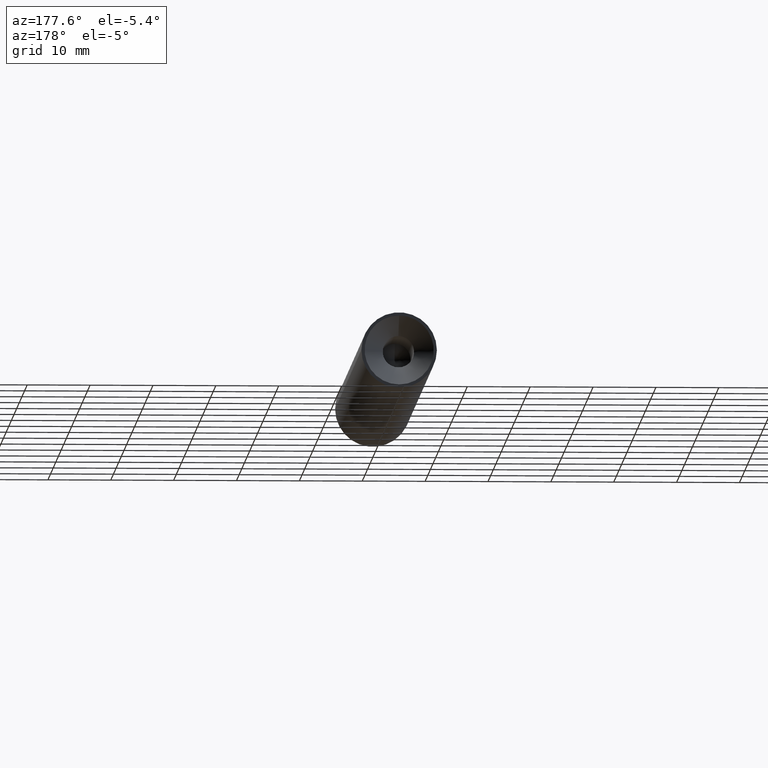
[diagram: clean part render]
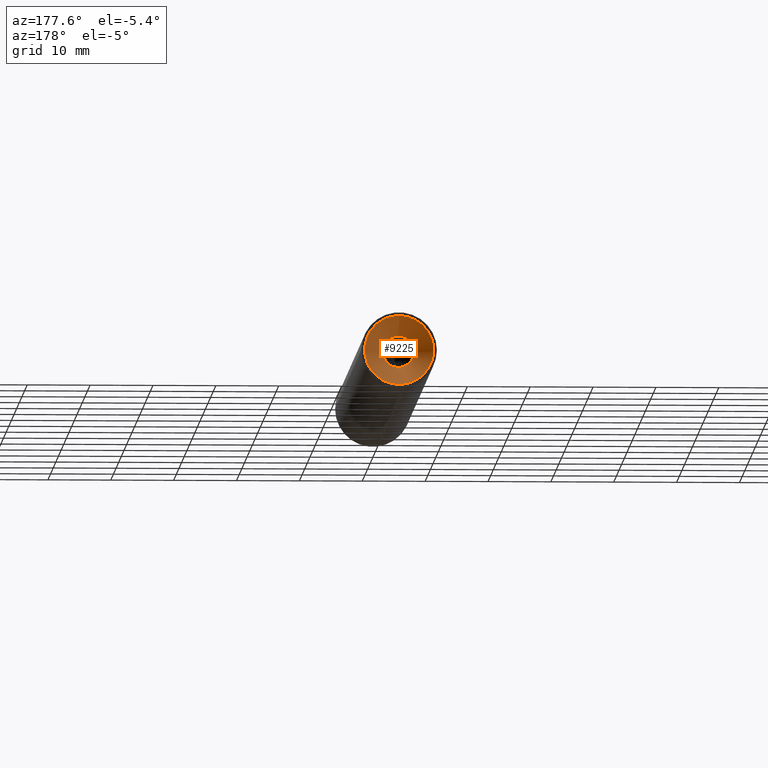
[diagram: same view with one face highlighted and labeled with its STEP entity id]
A machine part, auxiliary view. The second image highlights one B-rep face of the part: STEP entity #9225.
In plain terms, the highlighted conical surface has half-angle 45 deg.
Its self-contained STEP definition (entity closure, byte-faithful):
#452 = AXIS2_PLACEMENT_3D ( 'NONE', #11515, #11653, #5254 ) ;
#1163 = VERTEX_POINT ( 'NONE', #5500 ) ;
#2395 = CIRCLE ( 'NONE', #452, 2.499999999999992895 ) ;
#3405 = ORIENTED_EDGE ( 'NONE', *, *, #4497, .T. ) ;
#4497 = EDGE_CURVE ( 'NONE', #1163, #1163, #8909, .T. ) ;
#5213 = DIRECTION ( 'NONE',  ( -0.000000000000000000, 1.000000000000000000, -0.000000000000000000 ) ) ;
#5254 = DIRECTION ( 'NONE',  ( 0.000000000000000000, 0.000000000000000000, 1.000000000000000000 ) ) ;
#5285 = CONICAL_SURFACE ( 'NONE', #5869, 5.500000000000000000, 0.7853981633974479459 ) ;
#5500 = CARTESIAN_POINT ( 'NONE',  ( -1.674721690771509485E-31, 100.0000000000000000, 5.500000000000000000 ) ) ;
#5553 = EDGE_LOOP ( 'NONE', ( #12661 ) ) ;
#5869 = AXIS2_PLACEMENT_3D ( 'NONE', #11611, #5213, #6237 ) ;
#6237 = DIRECTION ( 'NONE',  ( 0.000000000000000000, 0.000000000000000000, 1.000000000000000000 ) ) ;
#6530 = AXIS2_PLACEMENT_3D ( 'NONE', #11392, #9121, #9312 ) ;
#7073 = VERTEX_POINT ( 'NONE', #10976 ) ;
#8726 = FACE_OUTER_BOUND ( 'NONE', #12624, .T. ) ;
#8909 = CIRCLE ( 'NONE', #6530, 5.500000000000000000 ) ;
#9121 = DIRECTION ( 'NONE',  ( -0.000000000000000000, 1.000000000000000000, -0.000000000000000000 ) ) ;
#9225 = ADVANCED_FACE ( 'NONE', ( #11199, #8726 ), #5285, .F. ) ;
#9312 = DIRECTION ( 'NONE',  ( 0.000000000000000000, 0.000000000000000000, 1.000000000000000000 ) ) ;
#10976 = CARTESIAN_POINT ( 'NONE',  ( -1.674721690771509485E-31, 97.00000000000000000, 2.499999999999992895 ) ) ;
#11199 = FACE_BOUND ( 'NONE', #5553, .T. ) ;
#11392 = CARTESIAN_POINT ( 'NONE',  ( -1.674721690771509485E-31, 100.0000000000000000, 0.000000000000000000 ) ) ;
#11515 = CARTESIAN_POINT ( 'NONE',  ( -1.674721690771509485E-31, 97.00000000000000000, 0.000000000000000000 ) ) ;
#11611 = CARTESIAN_POINT ( 'NONE',  ( -1.674721690771509485E-31, 100.0000000000000000, 0.000000000000000000 ) ) ;
#11653 = DIRECTION ( 'NONE',  ( 0.000000000000000000, -1.000000000000000000, 0.000000000000000000 ) ) ;
#12386 = EDGE_CURVE ( 'NONE', #7073, #7073, #2395, .T. ) ;
#12624 = EDGE_LOOP ( 'NONE', ( #3405 ) ) ;
#12661 = ORIENTED_EDGE ( 'NONE', *, *, #12386, .T. ) ;